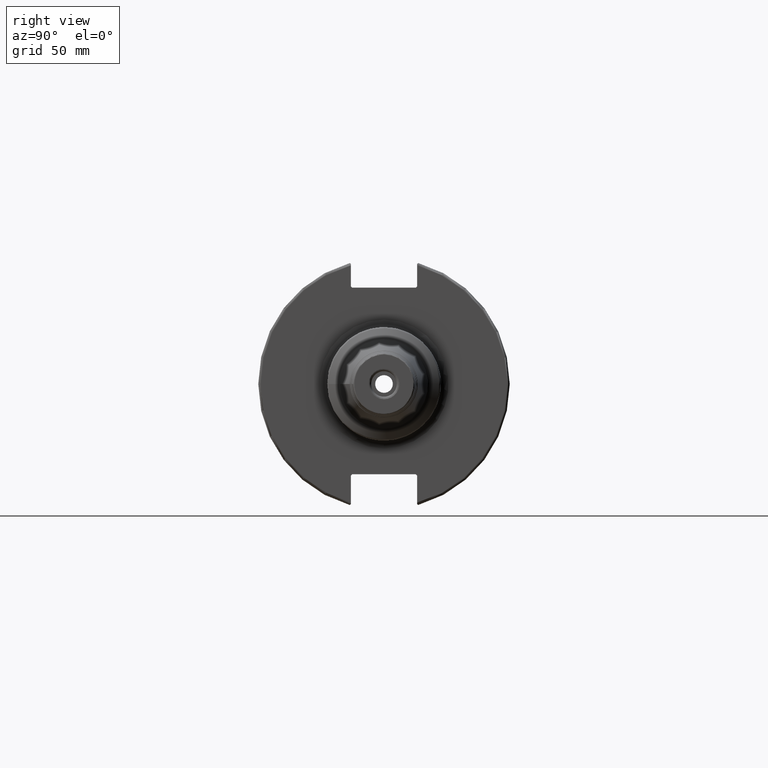
[diagram: clean part render]
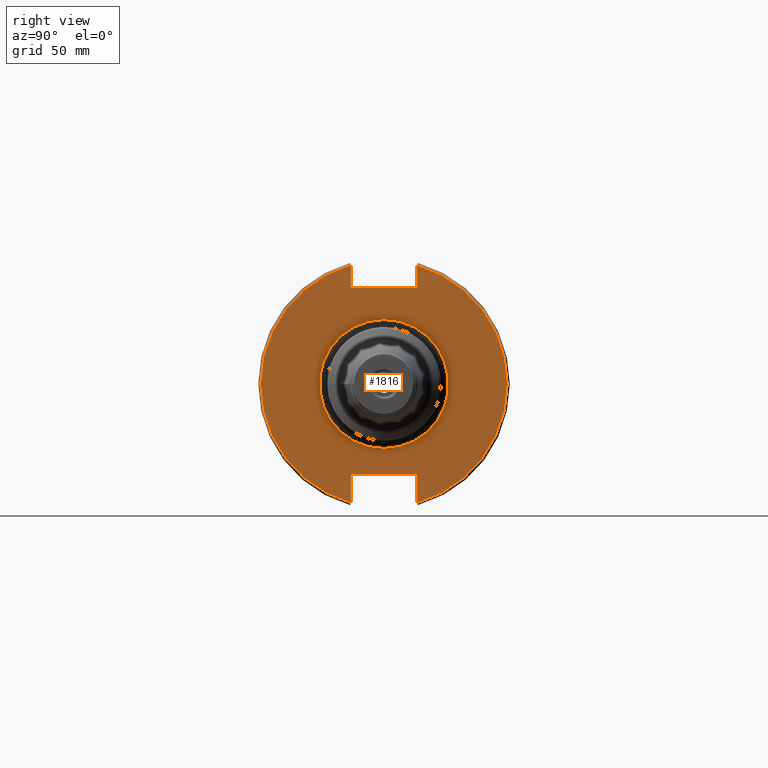
[diagram: same view with one face highlighted and labeled with its STEP entity id]
A machine part, right view. The second image highlights one B-rep face of the part: STEP entity #1816.
In plain terms, the highlighted planar face has unit normal (1, 0, 0).
Its self-contained STEP definition (entity closure, byte-faithful):
#94=FACE_BOUND('',#495,.T.);
#114=PLANE('',#1952);
#152=LINE('',#2777,#255);
#153=LINE('',#2779,#256);
#154=LINE('',#2781,#257);
#155=LINE('',#2783,#258);
#156=LINE('',#2785,#259);
#157=LINE('',#2789,#260);
#158=LINE('',#2791,#261);
#159=LINE('',#2793,#262);
#160=LINE('',#2795,#263);
#161=LINE('',#2796,#264);
#255=VECTOR('',#2203,10.);
#256=VECTOR('',#2204,10.);
#257=VECTOR('',#2205,10.);
#258=VECTOR('',#2206,10.);
#259=VECTOR('',#2207,10.);
#260=VECTOR('',#2210,10.);
#261=VECTOR('',#2211,10.);
#262=VECTOR('',#2212,10.);
#263=VECTOR('',#2213,10.);
#264=VECTOR('',#2214,10.);
#387=FACE_OUTER_BOUND('',#494,.T.);
#494=EDGE_LOOP('',(#1234,#1235,#1236,#1237,#1238,#1239,#1240,#1241,#1242,
#1243,#1244,#1245));
#495=EDGE_LOOP('',(#1246));
#621=CIRCLE('',#1947,25.25);
#625=CIRCLE('',#1953,48.2125);
#626=CIRCLE('',#1954,48.2125);
#748=VERTEX_POINT('',#2762);
#751=VERTEX_POINT('',#2773);
#752=VERTEX_POINT('',#2774);
#753=VERTEX_POINT('',#2776);
#754=VERTEX_POINT('',#2778);
#755=VERTEX_POINT('',#2780);
#756=VERTEX_POINT('',#2782);
#757=VERTEX_POINT('',#2784);
#758=VERTEX_POINT('',#2786);
#759=VERTEX_POINT('',#2788);
#760=VERTEX_POINT('',#2790);
#761=VERTEX_POINT('',#2792);
#762=VERTEX_POINT('',#2794);
#939=EDGE_CURVE('',#748,#748,#621,.T.);
#944=EDGE_CURVE('',#751,#752,#625,.T.);
#945=EDGE_CURVE('',#751,#753,#152,.T.);
#946=EDGE_CURVE('',#754,#753,#153,.T.);
#947=EDGE_CURVE('',#754,#755,#154,.T.);
#948=EDGE_CURVE('',#756,#755,#155,.T.);
#949=EDGE_CURVE('',#756,#757,#156,.T.);
#950=EDGE_CURVE('',#758,#757,#626,.T.);
#951=EDGE_CURVE('',#758,#759,#157,.T.);
#952=EDGE_CURVE('',#760,#759,#158,.T.);
#953=EDGE_CURVE('',#760,#761,#159,.T.);
#954=EDGE_CURVE('',#762,#761,#160,.T.);
#955=EDGE_CURVE('',#762,#752,#161,.T.);
#1234=ORIENTED_EDGE('',*,*,#944,.F.);
#1235=ORIENTED_EDGE('',*,*,#945,.T.);
#1236=ORIENTED_EDGE('',*,*,#946,.F.);
#1237=ORIENTED_EDGE('',*,*,#947,.T.);
#1238=ORIENTED_EDGE('',*,*,#948,.F.);
#1239=ORIENTED_EDGE('',*,*,#949,.T.);
#1240=ORIENTED_EDGE('',*,*,#950,.F.);
#1241=ORIENTED_EDGE('',*,*,#951,.T.);
#1242=ORIENTED_EDGE('',*,*,#952,.F.);
#1243=ORIENTED_EDGE('',*,*,#953,.T.);
#1244=ORIENTED_EDGE('',*,*,#954,.F.);
#1245=ORIENTED_EDGE('',*,*,#955,.T.);
#1246=ORIENTED_EDGE('',*,*,#939,.F.);
#1816=ADVANCED_FACE('',(#387,#94),#114,.T.);
#1947=AXIS2_PLACEMENT_3D('',#2764,#2188,#2189);
#1952=AXIS2_PLACEMENT_3D('',#2772,#2199,#2200);
#1953=AXIS2_PLACEMENT_3D('',#2775,#2201,#2202);
#1954=AXIS2_PLACEMENT_3D('',#2787,#2208,#2209);
#2188=DIRECTION('center_axis',(1.,0.,0.));
#2189=DIRECTION('ref_axis',(0.,-1.,-1.22464679914735E-16));
#2199=DIRECTION('center_axis',(1.,0.,0.));
#2200=DIRECTION('ref_axis',(0.,0.,-1.));
#2201=DIRECTION('center_axis',(-1.,0.,0.));
#2202=DIRECTION('ref_axis',(0.,1.,-6.12323399573677E-17));
#2203=DIRECTION('',(0.,0.,-1.));
#2204=DIRECTION('',(0.,0.707106781186549,0.707106781186546));
#2205=DIRECTION('',(0.,-1.,0.));
#2206=DIRECTION('',(0.,0.707106781186549,-0.707106781186546));
#2207=DIRECTION('',(0.,0.,1.));
#2208=DIRECTION('center_axis',(-1.,0.,0.));
#2209=DIRECTION('ref_axis',(0.,-1.,1.60812264967664E-16));
#2210=DIRECTION('',(0.,0.,1.));
#2211=DIRECTION('',(0.,-0.707106781186549,-0.707106781186546));
#2212=DIRECTION('',(0.,1.,0.));
#2213=DIRECTION('',(0.,-0.707106781186549,0.707106781186546));
#2214=DIRECTION('',(0.,0.,-1.));
#2762=CARTESIAN_POINT('',(19.05,-3.09223316784707E-15,-25.25));
#2764=CARTESIAN_POINT('Origin',(19.05,0.,0.));
#2772=CARTESIAN_POINT('Origin',(19.05,0.,0.));
#2773=CARTESIAN_POINT('',(19.05,12.95,46.4407434937254));
#2774=CARTESIAN_POINT('',(19.05,12.95,-46.4407434937254));
#2775=CARTESIAN_POINT('Origin',(19.05,0.,0.));
#2776=CARTESIAN_POINT('',(19.05,12.95,38.219));
#2777=CARTESIAN_POINT('',(19.05,12.95,18.8595));
#2778=CARTESIAN_POINT('',(19.05,12.45,37.719));
#2779=CARTESIAN_POINT('',(19.05,0.0327499999999836,25.30175));
#2780=CARTESIAN_POINT('',(19.05,-12.45,37.719));
#2781=CARTESIAN_POINT('',(19.05,0.,37.719));
#2782=CARTESIAN_POINT('',(19.05,-12.95,38.219));
#2783=CARTESIAN_POINT('',(19.05,-0.0327499999999817,25.30175));
#2784=CARTESIAN_POINT('',(19.05,-12.95,46.4407434937254));
#2785=CARTESIAN_POINT('',(19.05,-12.95,18.8595));
#2786=CARTESIAN_POINT('',(19.05,-12.95,-46.4407434937254));
#2787=CARTESIAN_POINT('Origin',(19.05,0.,0.));
#2788=CARTESIAN_POINT('',(19.05,-12.95,-35.806));
#2789=CARTESIAN_POINT('',(19.05,-12.95,-17.653));
#2790=CARTESIAN_POINT('',(19.05,-12.45,-35.306));
#2791=CARTESIAN_POINT('',(19.05,-0.635999999999989,-23.492));
#2792=CARTESIAN_POINT('',(19.05,12.45,-35.306));
#2793=CARTESIAN_POINT('',(19.05,-3.33066907387547E-15,-35.306));
#2794=CARTESIAN_POINT('',(19.05,12.95,-35.806));
#2795=CARTESIAN_POINT('',(19.05,0.635999999999982,-23.492));
#2796=CARTESIAN_POINT('',(19.05,12.95,-17.653));